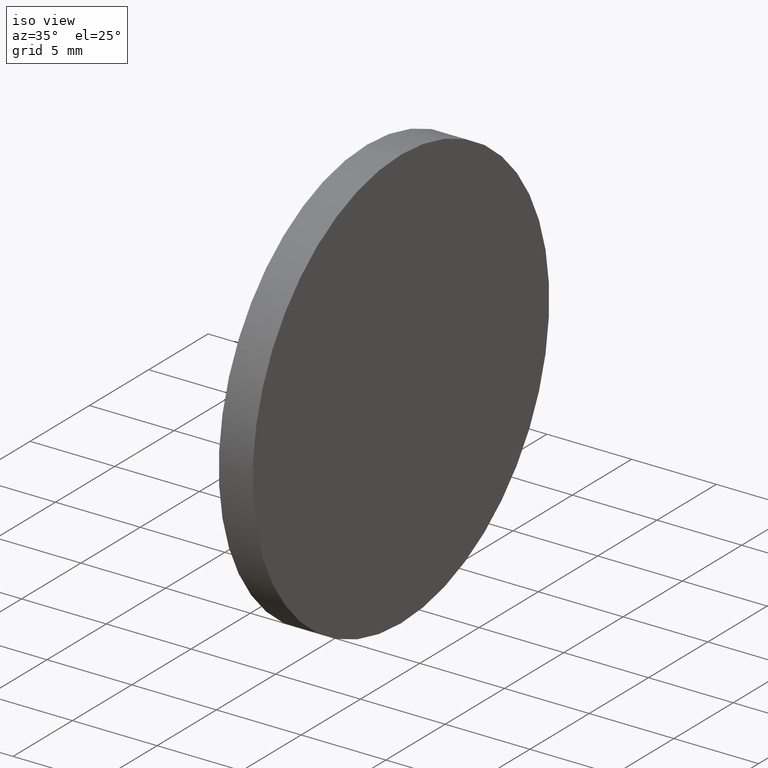
[diagram: clean part render]
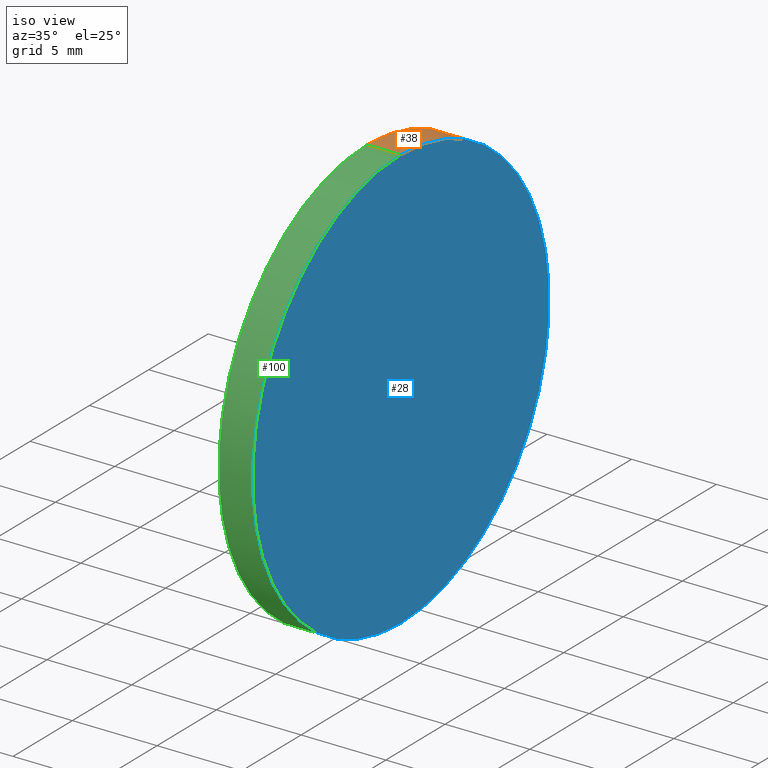
[diagram: same view with three faces highlighted in distinct colors, each labeled with its STEP entity id]
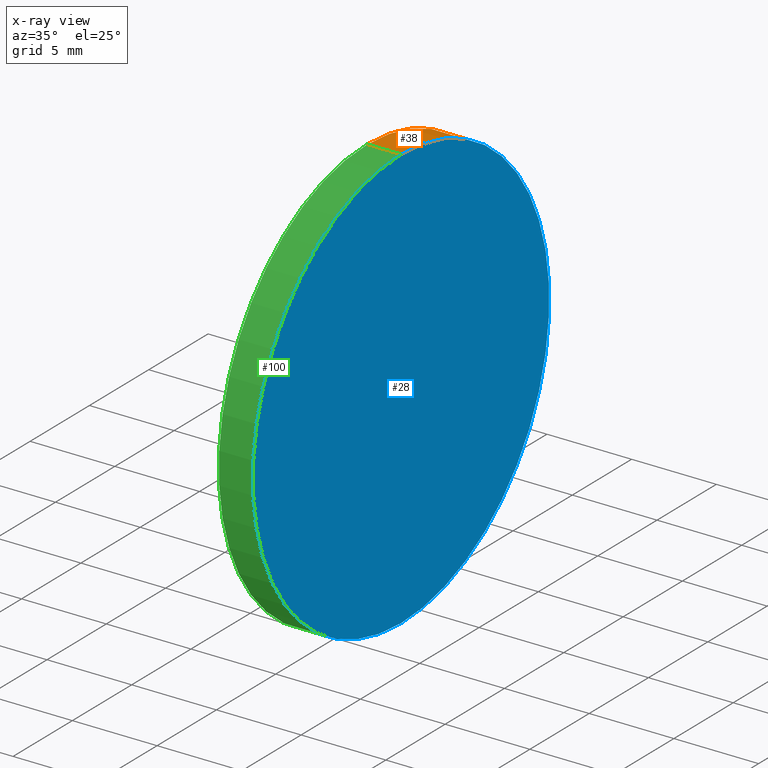
[diagram: x-ray of the same camera — body ghosted, the three highlighted faces saturated]
A machine part, iso view with three faces highlighted in distinct colors.
The next image is the same camera in x-ray (body ghosted, the three faces saturated) — at least one of them is partly hidden behind the body in this view.
Their STEP definitions:

[orange] entity #38 — the highlighted cylindrical surface (partial cylindrical patch) has radius 12.5 mm, axis along (-1, -0, -0).
#1 = CARTESIAN_POINT ( 'NONE',  ( 254.0008019926160300, 77.29317934901541800, 12.49999999999999600 ) ) ;
#5 = CARTESIAN_POINT ( 'NONE',  ( 262.2862081684760400, 77.29317934901541800, -12.49999999999999600 ) ) ;
#7 = DIRECTION ( 'NONE',  ( -1.000000000000000000, -0.0000000000000000000, -0.0000000000000000000 ) ) ;
#11 = CARTESIAN_POINT ( 'NONE',  ( 254.0008019926160300, 77.29317934901541800, 0.0000000000000000000 ) ) ;
#17 = CYLINDRICAL_SURFACE ( 'NONE', #31, 12.49999999999999600 ) ;
#30 = CARTESIAN_POINT ( 'NONE',  ( 254.0008019926160300, 77.29317934901541800, -12.49999999999999600 ) ) ;
#31 = AXIS2_PLACEMENT_3D ( 'NONE', #11, #71, #96 ) ;
#33 = CARTESIAN_POINT ( 'NONE',  ( 260.2862081684760400, 77.29317934901541800, 12.49999999999999600 ) ) ;
#38 = ADVANCED_FACE ( 'NONE', ( #72 ), #17, .T. ) ;
#47 = AXIS2_PLACEMENT_3D ( 'NONE', #67, #120, #128 ) ;
#52 = LINE ( 'NONE', #1, #134 ) ;
#53 = DIRECTION ( 'NONE',  ( -1.000000000000000000, -0.0000000000000000000, -0.0000000000000000000 ) ) ;
#58 = VERTEX_POINT ( 'NONE', #103 ) ;
#60 = EDGE_CURVE ( 'NONE', #74, #123, #131, .T. ) ;
#63 = EDGE_CURVE ( 'NONE', #58, #74, #52, .T. ) ;
#64 = ORIENTED_EDGE ( 'NONE', *, *, #107, .T. ) ;
#67 = CARTESIAN_POINT ( 'NONE',  ( 260.2862081684760400, 77.29317934901541800, 0.0000000000000000000 ) ) ;
#68 = DIRECTION ( 'NONE',  ( -1.000000000000000000, -0.0000000000000000000, -0.0000000000000000000 ) ) ;
#69 = ORIENTED_EDGE ( 'NONE', *, *, #117, .T. ) ;
#71 = DIRECTION ( 'NONE',  ( -1.000000000000000000, -0.0000000000000000000, -0.0000000000000000000 ) ) ;
#72 = FACE_OUTER_BOUND ( 'NONE', #114, .T. ) ;
#74 = VERTEX_POINT ( 'NONE', #33 ) ;
#76 = CARTESIAN_POINT ( 'NONE',  ( 262.2862081684760400, 77.29317934901541800, 0.0000000000000000000 ) ) ;
#83 = ORIENTED_EDGE ( 'NONE', *, *, #60, .F. ) ;
#89 = ORIENTED_EDGE ( 'NONE', *, *, #63, .F. ) ;
#90 = DIRECTION ( 'NONE',  ( 0.0000000000000000000, 0.0000000000000000000, 1.000000000000000000 ) ) ;
#96 = DIRECTION ( 'NONE',  ( 0.0000000000000000000, 0.0000000000000000000, 1.000000000000000000 ) ) ;
#101 = LINE ( 'NONE', #30, #127 ) ;
#103 = CARTESIAN_POINT ( 'NONE',  ( 262.2862081684760400, 77.29317934901541800, 12.49999999999999600 ) ) ;
#105 = AXIS2_PLACEMENT_3D ( 'NONE', #76, #53, #90 ) ;
#107 = EDGE_CURVE ( 'NONE', #58, #116, #126, .T. ) ;
#114 = EDGE_LOOP ( 'NONE', ( #64, #69, #83, #89 ) ) ;
#116 = VERTEX_POINT ( 'NONE', #5 ) ;
#117 = EDGE_CURVE ( 'NONE', #116, #123, #101, .T. ) ;
#120 = DIRECTION ( 'NONE',  ( -1.000000000000000000, -0.0000000000000000000, -0.0000000000000000000 ) ) ;
#123 = VERTEX_POINT ( 'NONE', #132 ) ;
#126 = CIRCLE ( 'NONE', #105, 12.49999999999999600 ) ;
#127 = VECTOR ( 'NONE', #7, 1000.000000000000000 ) ;
#128 = DIRECTION ( 'NONE',  ( 0.0000000000000000000, 0.0000000000000000000, 1.000000000000000000 ) ) ;
#131 = CIRCLE ( 'NONE', #47, 12.49999999999999600 ) ;
#132 = CARTESIAN_POINT ( 'NONE',  ( 260.2862081684760400, 77.29317934901541800, -12.49999999999999600 ) ) ;
#134 = VECTOR ( 'NONE', #68, 1000.000000000000000 ) ;

[blue] entity #28 — the highlighted planar face has unit normal (-1, 0, -0).
#5 = CARTESIAN_POINT ( 'NONE',  ( 262.2862081684760400, 77.29317934901541800, -12.49999999999999600 ) ) ;
#8 = EDGE_CURVE ( 'NONE', #116, #58, #118, .T. ) ;
#20 = EDGE_LOOP ( 'NONE', ( #140, #102 ) ) ;
#25 = AXIS2_PLACEMENT_3D ( 'NONE', #121, #45, #82 ) ;
#28 = ADVANCED_FACE ( 'NONE', ( #43 ), #34, .F. ) ;
#34 = PLANE ( 'NONE',  #25 ) ;
#43 = FACE_OUTER_BOUND ( 'NONE', #20, .T. ) ;
#45 = DIRECTION ( 'NONE',  ( -1.000000000000000000, 0.0000000000000000000, -0.0000000000000000000 ) ) ;
#53 = DIRECTION ( 'NONE',  ( -1.000000000000000000, -0.0000000000000000000, -0.0000000000000000000 ) ) ;
#58 = VERTEX_POINT ( 'NONE', #103 ) ;
#59 = CARTESIAN_POINT ( 'NONE',  ( 262.2862081684760400, 77.29317934901541800, 0.0000000000000000000 ) ) ;
#76 = CARTESIAN_POINT ( 'NONE',  ( 262.2862081684760400, 77.29317934901541800, 0.0000000000000000000 ) ) ;
#80 = AXIS2_PLACEMENT_3D ( 'NONE', #59, #135, #122 ) ;
#82 = DIRECTION ( 'NONE',  ( -0.0000000000000000000, 0.0000000000000000000, 1.000000000000000000 ) ) ;
#90 = DIRECTION ( 'NONE',  ( 0.0000000000000000000, 0.0000000000000000000, 1.000000000000000000 ) ) ;
#102 = ORIENTED_EDGE ( 'NONE', *, *, #8, .F. ) ;
#103 = CARTESIAN_POINT ( 'NONE',  ( 262.2862081684760400, 77.29317934901541800, 12.49999999999999600 ) ) ;
#105 = AXIS2_PLACEMENT_3D ( 'NONE', #76, #53, #90 ) ;
#107 = EDGE_CURVE ( 'NONE', #58, #116, #126, .T. ) ;
#116 = VERTEX_POINT ( 'NONE', #5 ) ;
#118 = CIRCLE ( 'NONE', #80, 12.49999999999999600 ) ;
#121 = CARTESIAN_POINT ( 'NONE',  ( 262.2862081684760400, 89.79317934901541800, 0.0000000000000000000 ) ) ;
#122 = DIRECTION ( 'NONE',  ( 0.0000000000000000000, 0.0000000000000000000, 1.000000000000000000 ) ) ;
#126 = CIRCLE ( 'NONE', #105, 12.49999999999999600 ) ;
#135 = DIRECTION ( 'NONE',  ( -1.000000000000000000, -0.0000000000000000000, -0.0000000000000000000 ) ) ;
#140 = ORIENTED_EDGE ( 'NONE', *, *, #107, .F. ) ;

[green] entity #100 — the highlighted cylindrical surface (partial cylindrical patch) has radius 12.5 mm, axis along (-1, -0, -0).
#1 = CARTESIAN_POINT ( 'NONE',  ( 254.0008019926160300, 77.29317934901541800, 12.49999999999999600 ) ) ;
#5 = CARTESIAN_POINT ( 'NONE',  ( 262.2862081684760400, 77.29317934901541800, -12.49999999999999600 ) ) ;
#6 = CYLINDRICAL_SURFACE ( 'NONE', #112, 12.49999999999999600 ) ;
#7 = DIRECTION ( 'NONE',  ( -1.000000000000000000, -0.0000000000000000000, -0.0000000000000000000 ) ) ;
#8 = EDGE_CURVE ( 'NONE', #116, #58, #118, .T. ) ;
#10 = DIRECTION ( 'NONE',  ( 0.0000000000000000000, 0.0000000000000000000, 1.000000000000000000 ) ) ;
#21 = DIRECTION ( 'NONE',  ( -1.000000000000000000, -0.0000000000000000000, -0.0000000000000000000 ) ) ;
#23 = ORIENTED_EDGE ( 'NONE', *, *, #8, .T. ) ;
#29 = ORIENTED_EDGE ( 'NONE', *, *, #117, .F. ) ;
#30 = CARTESIAN_POINT ( 'NONE',  ( 254.0008019926160300, 77.29317934901541800, -12.49999999999999600 ) ) ;
#33 = CARTESIAN_POINT ( 'NONE',  ( 260.2862081684760400, 77.29317934901541800, 12.49999999999999600 ) ) ;
#36 = FACE_OUTER_BOUND ( 'NONE', #95, .T. ) ;
#50 = ORIENTED_EDGE ( 'NONE', *, *, #63, .T. ) ;
#52 = LINE ( 'NONE', #1, #134 ) ;
#55 = DIRECTION ( 'NONE',  ( 0.0000000000000000000, 0.0000000000000000000, 1.000000000000000000 ) ) ;
#58 = VERTEX_POINT ( 'NONE', #103 ) ;
#59 = CARTESIAN_POINT ( 'NONE',  ( 262.2862081684760400, 77.29317934901541800, 0.0000000000000000000 ) ) ;
#63 = EDGE_CURVE ( 'NONE', #58, #74, #52, .T. ) ;
#65 = EDGE_CURVE ( 'NONE', #123, #74, #84, .T. ) ;
#68 = DIRECTION ( 'NONE',  ( -1.000000000000000000, -0.0000000000000000000, -0.0000000000000000000 ) ) ;
#74 = VERTEX_POINT ( 'NONE', #33 ) ;
#80 = AXIS2_PLACEMENT_3D ( 'NONE', #59, #135, #122 ) ;
#81 = DIRECTION ( 'NONE',  ( -1.000000000000000000, -0.0000000000000000000, -0.0000000000000000000 ) ) ;
#84 = CIRCLE ( 'NONE', #88, 12.49999999999999600 ) ;
#86 = CARTESIAN_POINT ( 'NONE',  ( 254.0008019926160300, 77.29317934901541800, 0.0000000000000000000 ) ) ;
#88 = AXIS2_PLACEMENT_3D ( 'NONE', #93, #21, #55 ) ;
#93 = CARTESIAN_POINT ( 'NONE',  ( 260.2862081684760400, 77.29317934901541800, 0.0000000000000000000 ) ) ;
#95 = EDGE_LOOP ( 'NONE', ( #29, #23, #50, #108 ) ) ;
#100 = ADVANCED_FACE ( 'NONE', ( #36 ), #6, .T. ) ;
#101 = LINE ( 'NONE', #30, #127 ) ;
#103 = CARTESIAN_POINT ( 'NONE',  ( 262.2862081684760400, 77.29317934901541800, 12.49999999999999600 ) ) ;
#108 = ORIENTED_EDGE ( 'NONE', *, *, #65, .F. ) ;
#112 = AXIS2_PLACEMENT_3D ( 'NONE', #86, #81, #10 ) ;
#116 = VERTEX_POINT ( 'NONE', #5 ) ;
#117 = EDGE_CURVE ( 'NONE', #116, #123, #101, .T. ) ;
#118 = CIRCLE ( 'NONE', #80, 12.49999999999999600 ) ;
#122 = DIRECTION ( 'NONE',  ( 0.0000000000000000000, 0.0000000000000000000, 1.000000000000000000 ) ) ;
#123 = VERTEX_POINT ( 'NONE', #132 ) ;
#127 = VECTOR ( 'NONE', #7, 1000.000000000000000 ) ;
#132 = CARTESIAN_POINT ( 'NONE',  ( 260.2862081684760400, 77.29317934901541800, -12.49999999999999600 ) ) ;
#134 = VECTOR ( 'NONE', #68, 1000.000000000000000 ) ;
#135 = DIRECTION ( 'NONE',  ( -1.000000000000000000, -0.0000000000000000000, -0.0000000000000000000 ) ) ;